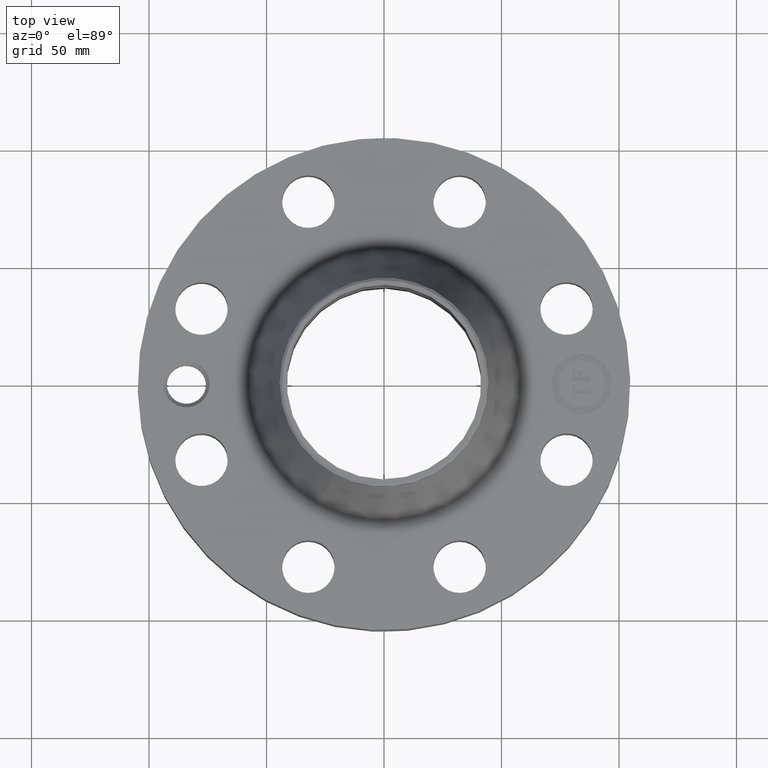
[diagram: clean part render]
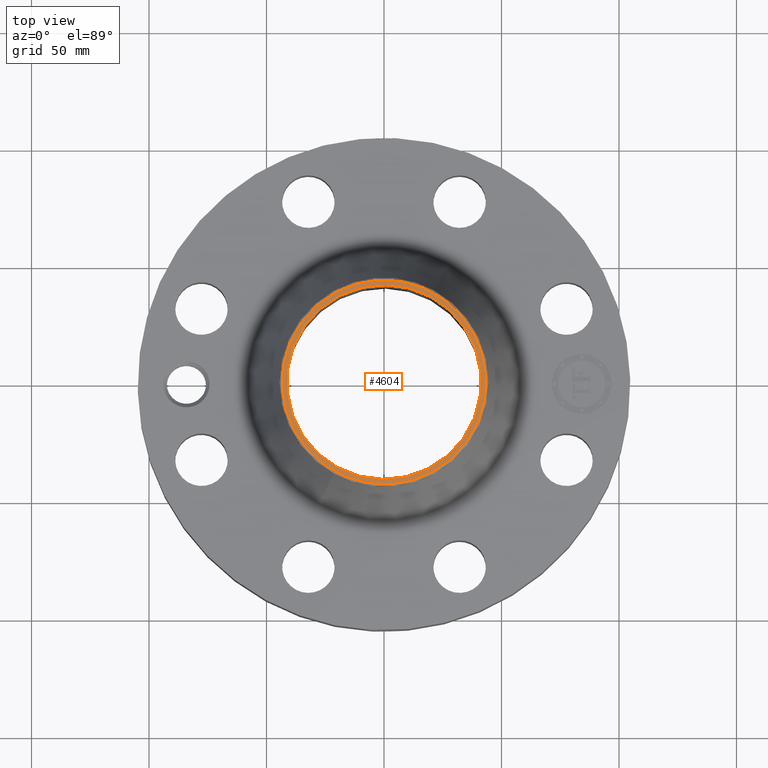
[diagram: same view with one face highlighted and labeled with its STEP entity id]
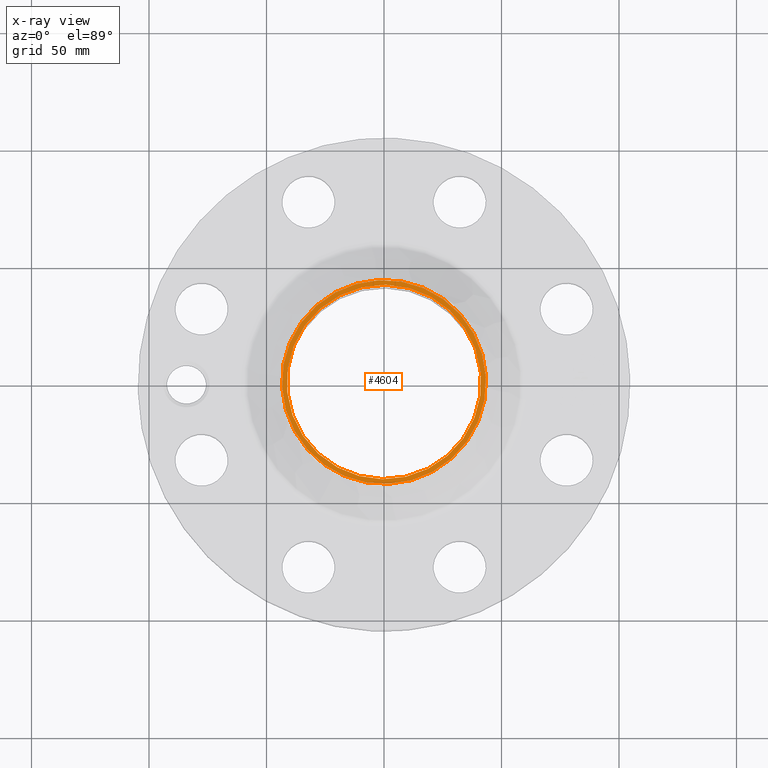
[diagram: x-ray of the same camera — body ghosted, the highlighted face saturated]
A machine part, top view. The second image highlights one B-rep face of the part: STEP entity #4604.
The next image is the same camera in x-ray: the body ghosted, the highlighted face saturated — about 0% of this face is hidden behind the body in this view.
In plain terms, the highlighted planar face has unit normal (0, 0, -1).
Its self-contained STEP definition (entity closure, byte-faithful):
#3292=AXIS2_PLACEMENT_3D('Circle Axis2P3D',#3290,#3291,$) ;
#3360=AXIS2_PLACEMENT_3D('Circle Axis2P3D',#3358,#3359,$) ;
#4580=AXIS2_PLACEMENT_3D('Plane Axis2P3D',#4577,#4578,#4579) ;
#4584=AXIS2_PLACEMENT_3D('Circle Axis2P3D',#4582,#4583,$) ;
#4593=AXIS2_PLACEMENT_3D('Circle Axis2P3D',#4591,#4592,$) ;
#3290=CARTESIAN_POINT('Axis2P3D Location',(0.,0.,3.75000000002)) ;
#3294=CARTESIAN_POINT('Vertex',(0.781463627928,1.43045957589,3.75000000002)) ;
#3296=CARTESIAN_POINT('Vertex',(-0.781463627928,-1.43045957589,3.75000000002)) ;
#3358=CARTESIAN_POINT('Axis2P3D Location',(0.,0.,3.75000000002)) ;
#4577=CARTESIAN_POINT('Axis2P3D Location',(0.,1.75000000001,3.75000000002)) ;
#4582=CARTESIAN_POINT('Axis2P3D Location',(0.,0.,3.75000000002)) ;
#4586=CARTESIAN_POINT('Vertex',(0.819213670338,-1.49956056501,3.75000000002)) ;
#4588=CARTESIAN_POINT('Vertex',(-0.819213670338,1.49956056501,3.75000000002)) ;
#4591=CARTESIAN_POINT('Axis2P3D Location',(0.,0.,3.75000000002)) ;
#3291=DIRECTION('Axis2P3D Direction',(0.,0.,-0.0393700787402)) ;
#3359=DIRECTION('Axis2P3D Direction',(0.,0.,-0.0393700787402)) ;
#4578=DIRECTION('Axis2P3D Direction',(0.,0.,-0.0393700787402)) ;
#4579=DIRECTION('Axis2P3D XDirection',(0.0393700787402,0.,0.)) ;
#4583=DIRECTION('Axis2P3D Direction',(0.,0.,-0.0393700787402)) ;
#4592=DIRECTION('Axis2P3D Direction',(0.,0.,-0.0393700787402)) ;
#4597=ORIENTED_EDGE('',*,*,#4590,.T.) ;
#4598=ORIENTED_EDGE('',*,*,#4595,.T.) ;
#4601=ORIENTED_EDGE('',*,*,#3362,.T.) ;
#4602=ORIENTED_EDGE('',*,*,#3298,.T.) ;
#4603=FACE_BOUND('',#4600,.T.) ;
#4604=ADVANCED_FACE('PartBody',(#4599,#4603),#4581,.F.) ;
#3293=CIRCLE('generated circle',#3292,1.63000000001) ;
#3361=CIRCLE('generated circle',#3360,1.63000000001) ;
#4585=CIRCLE('generated circle',#4584,1.70874015749) ;
#4594=CIRCLE('generated circle',#4593,1.70874015749) ;
#3298=EDGE_CURVE('',#3295,#3297,#3293,.T.) ;
#3362=EDGE_CURVE('',#3297,#3295,#3361,.T.) ;
#4590=EDGE_CURVE('',#4587,#4589,#4585,.F.) ;
#4595=EDGE_CURVE('',#4589,#4587,#4594,.F.) ;
#4596=EDGE_LOOP('',(#4597,#4598)) ;
#4600=EDGE_LOOP('',(#4601,#4602)) ;
#4599=FACE_OUTER_BOUND('',#4596,.T.) ;
#4581=PLANE('',#4580) ;
#3295=VERTEX_POINT('',#3294) ;
#3297=VERTEX_POINT('',#3296) ;
#4587=VERTEX_POINT('',#4586) ;
#4589=VERTEX_POINT('',#4588) ;